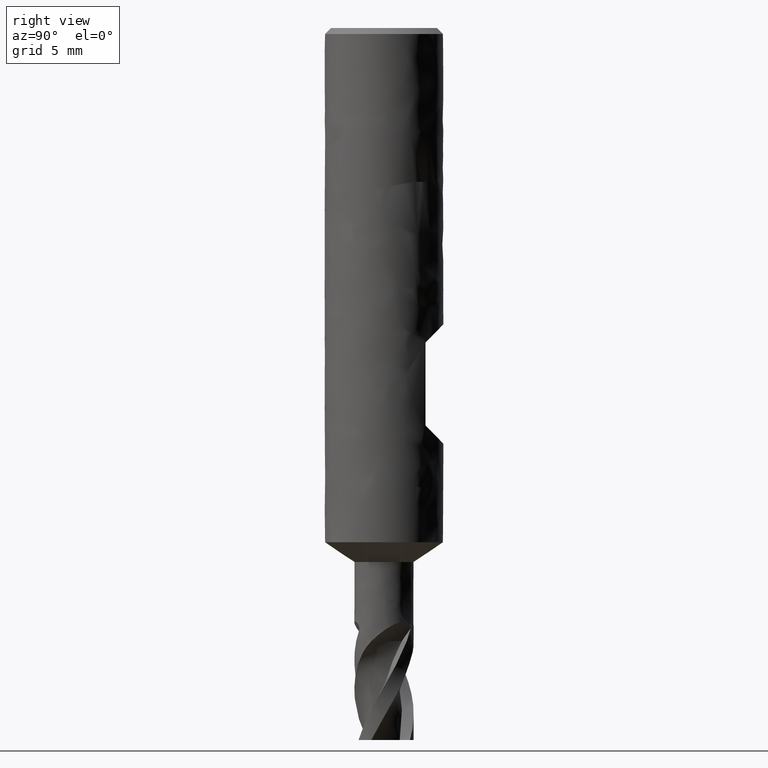
[diagram: clean part render]
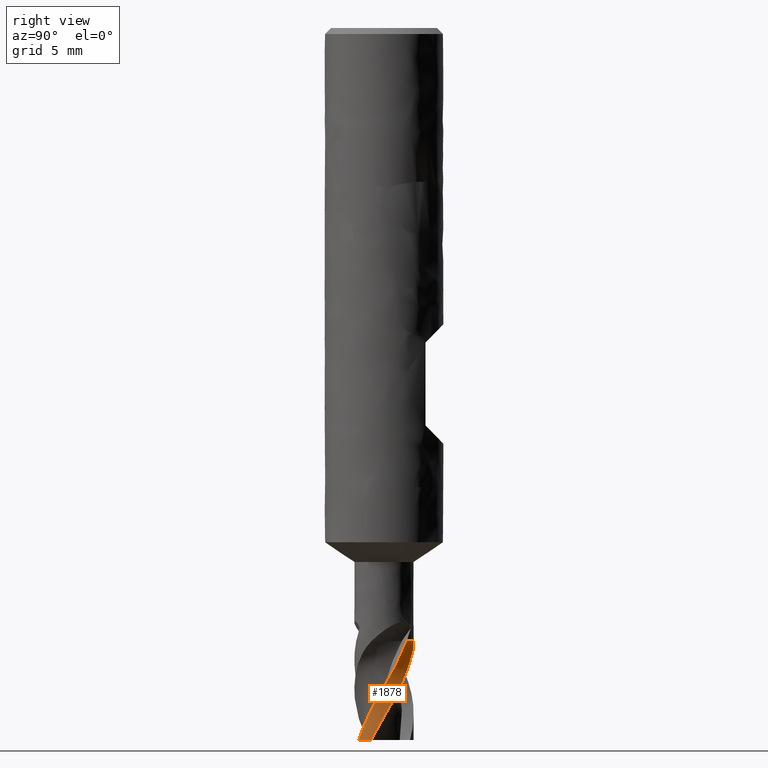
[diagram: same view with one face highlighted and labeled with its STEP entity id]
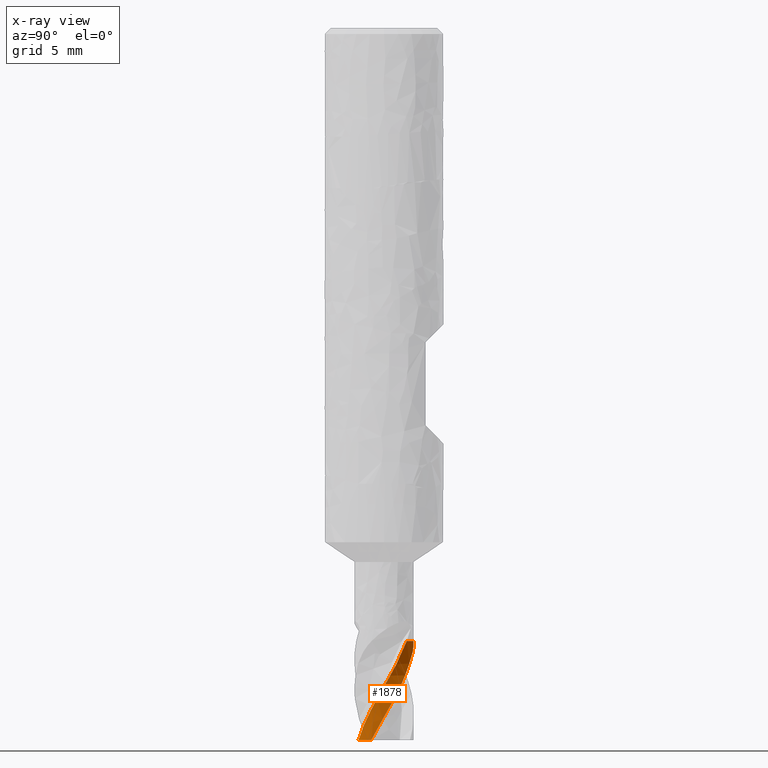
[diagram: x-ray of the same camera — body ghosted, the highlighted face saturated]
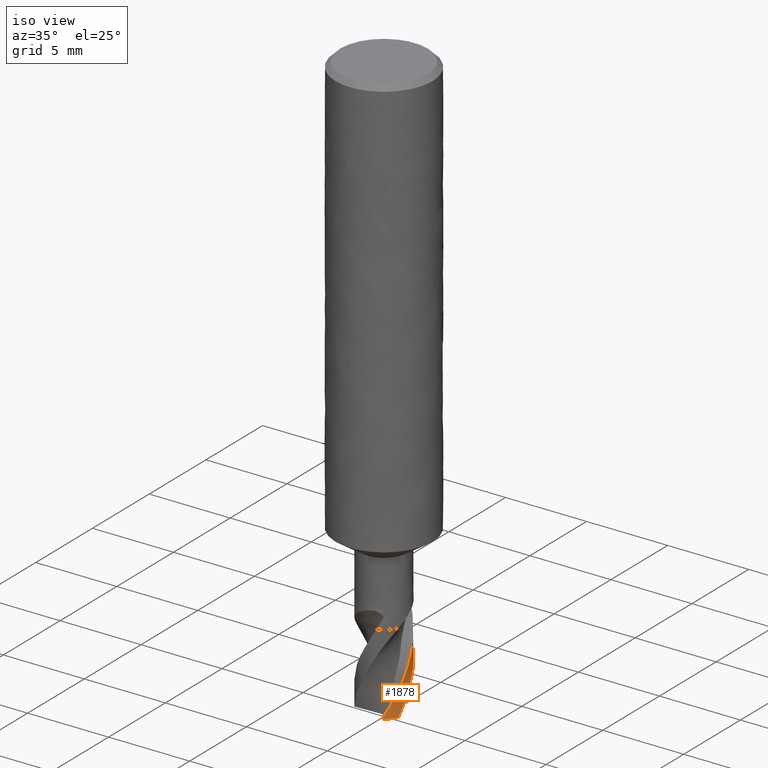
[diagram: same view with one face highlighted and labeled with its STEP entity id]
A machine part, right view. The second image highlights one B-rep face of the part: STEP entity #1878.
The next image is the same camera in x-ray: the body ghosted, the highlighted face saturated — about 0% of this face is hidden behind the body in this view.
A second angle (iso view) of the same face is appended — the face is thin or edge-on in the first view.
In plain terms, the highlighted face is a freeform B-spline surface patch.
Its self-contained STEP definition (entity closure, byte-faithful):
#1124 = VERTEX_POINT('', #1125);
#1125 = CARTESIAN_POINT('', (0.958839185865557, 1.15352824657599, -31.));
#1131 = EDGE_CURVE('', #1132, #1124, #1134, .T.);
#1132 = VERTEX_POINT('', #1133);
#1133 = CARTESIAN_POINT('', (-0.132525076305562, 1.49413423230653, -31.));
#1134 = CIRCLE('', #1135, 1.5);
#1135 = AXIS2_PLACEMENT_3D('', #1136, #1137, #1138);
#1136 = CARTESIAN_POINT('', (1.16231383156294E-31, 1.8982025386784E-15, -31.));
#1137 = DIRECTION('', (3.74939945665464E-33, 6.12323399573677E-17, -1.));
#1138 = DIRECTION('', (-1., 6.12323399573677E-17, 0.));
#1730 = EDGE_CURVE('', #1731, #1132, #1733, .T.);
#1731 = VERTEX_POINT('', #1732);
#1732 = CARTESIAN_POINT('', (1.35516285977925, -0.643065800268464, -36.));
#1733 = B_SPLINE_CURVE_WITH_KNOTS('', 3, (#1734, #1735, #1736, #1737, #1738, #1739, #1740, #1741, #1742, #1743, #1744, #1745, #1746, #1747, #1748, #1749, #1750, #1751, #1752, #1753, #1754, #1755, #1756, #1757, #1758, #1759, #1760, #1761, #1762, #1763, #1764, #1765, #1766, #1767, #1768, #1769, #1770, #1771, #1772, #1773, #1774, #1775, #1776, #1777, #1778, #1779, #1780, #1781, #1782, #1783, #1784, #1785, #1786, #1787, #1788, #1789, #1790, #1791, #1792, #1793, #1794, #1795, #1796, #1797, #1798, #1799, #1800, #1801, #1802, #1803, #1804, #1805, #1806, #1807, #1808, #1809, #1810, #1811, #1812, #1813, #1814, #1815, #1816, #1817, #1818, #1819, #1820, #1821, #1822, #1823, #1824, #1825, #1826, #1827), .UNSPECIFIED., .F., .U., (4, 3, 3, 3, 3, 3, 3, 3, 3, 3, 3, 3, 3, 3, 3, 3, 3, 3, 3, 3, 3, 3, 3, 3, 3, 3, 3, 3, 3, 3, 3, 4), (0., 0.442532734427091, 0.884771274311208, 1.17972834788145, 1.3109583568353, 1.36932813242417, 1.66559458316171, 1.96176102698724, 2.15903733743401, 2.45504305907387, 2.75094945797995, 2.94811205381504, 3.0795101949103, 3.21090249123528, 3.40800019671643, 3.60505973044536, 3.73640650669859, 3.8677720199228, 3.99917569235387, 4.05756086844672, 4.25465709933884, 4.3860332126647, 4.58314525158849, 4.78024687678338, 4.97735714707174, 5.17448675600856, 5.37162761952139, 5.56877535665107, 5.70016971297617, 5.73909404548315, 5.76506043707108, 5.93192917428079), .UNSPECIFIED.);
#1734 = CARTESIAN_POINT('', (1.3551628597795, -0.643065800267935, -36.));
#1735 = CARTESIAN_POINT('', (1.38637585611365, -0.577289182452383, -35.8717087126381));
#1736 = CARTESIAN_POINT('', (1.41283940434925, -0.509125696539645, -35.7433755593956));
#1737 = CARTESIAN_POINT('', (1.43421183009642, -0.439359108715716, -35.6151752799674));
#1738 = CARTESIAN_POINT('', (1.45557004751383, -0.369638901527213, -35.4870602277318));
#1739 = CARTESIAN_POINT('', (1.47186845032333, -0.298234473315245, -35.3589072632373));
#1740 = CARTESIAN_POINT('', (1.48287851110853, -0.225989648640225, -35.230883784062));
#1741 = CARTESIAN_POINT('', (1.49022182250307, -0.177804969683202, -35.1454967647042));
#1742 = CARTESIAN_POINT('', (1.49522133376664, -0.129212491248956, -35.0601051025218));
#1743 = CARTESIAN_POINT('', (1.49783998053872, -0.0804698247777057, -34.9747591844144));
#1744 = CARTESIAN_POINT('', (1.4990050485101, -0.0587836164083602, -34.9367877417843));
#1745 = CARTESIAN_POINT('', (1.4996994803016, -0.0370638593079372, -34.8988180823167));
#1746 = CARTESIAN_POINT('', (1.49992162658856, -0.0153334305334637, -34.8608546974764));
#1747 = CARTESIAN_POINT('', (1.50002043500152, -0.00566795644619165, -34.8439689693462));
#1748 = CARTESIAN_POINT('', (1.50002582824932, 0.00399998854800063, -34.8270838501038));
#1749 = CARTESIAN_POINT('', (1.49993772394604, 0.0136683679922434, -34.810199726097));
#1750 = CARTESIAN_POINT('', (1.49949053447231, 0.062741992713801, -34.7245012726966));
#1751 = CARTESIAN_POINT('', (1.49663172475541, 0.111843190593706, -34.6387971995814));
#1752 = CARTESIAN_POINT('', (1.49136621587683, 0.160707218697564, -34.5531395863139));
#1753 = CARTESIAN_POINT('', (1.48610248440936, 0.209554752390573, -34.4675108874017));
#1754 = CARTESIAN_POINT('', (1.47843000298162, 0.258197370965027, -34.3818791808467));
#1755 = CARTESIAN_POINT('', (1.46838014755985, 0.30636537378148, -34.2962935137936));
#1756 = CARTESIAN_POINT('', (1.46168594421757, 0.33845005479557, -34.2392849465661));
#1757 = CARTESIAN_POINT('', (1.45393559091752, 0.370333864726718, -34.1822772004076));
#1758 = CARTESIAN_POINT('', (1.4451464759914, 0.401934898870023, -34.1252829730562));
#1759 = CARTESIAN_POINT('', (1.43195873793814, 0.449351068074377, -34.03976526767));
#1760 = CARTESIAN_POINT('', (1.41642504475155, 0.496157423481714, -33.9542366528472));
#1761 = CARTESIAN_POINT('', (1.39860082451106, 0.54213995764658, -33.8687767722242));
#1762 = CARTESIAN_POINT('', (1.38078258506807, 0.588107062680634, -33.7833455670907));
#1763 = CARTESIAN_POINT('', (1.36065727657725, 0.63327908595302, -33.6979332388549));
#1764 = CARTESIAN_POINT('', (1.33839708524803, 0.677268958538344, -33.6125029736995));
#1765 = CARTESIAN_POINT('', (1.32356510756021, 0.70657943476137, -33.5555807411854));
#1766 = CARTESIAN_POINT('', (1.30777294583568, 0.735390124326599, -33.4986411507387));
#1767 = CARTESIAN_POINT('', (1.29113250186453, 0.763529215308132, -33.4416278249621));
#1768 = CARTESIAN_POINT('', (1.28004255148348, 0.782282388197864, -33.4036315458353));
#1769 = CARTESIAN_POINT('', (1.26857569046993, 0.800739249777827, -33.3655959939269));
#1770 = CARTESIAN_POINT('', (1.2567706473788, 0.818857460054602, -33.327507188034));
#1771 = CARTESIAN_POINT('', (1.24496612939224, 0.836974864408432, -33.2894200763836));
#1772 = CARTESIAN_POINT('', (1.23282675687514, 0.854750033453178, -33.2512710626281));
#1773 = CARTESIAN_POINT('', (1.22036355015556, 0.872188514858878, -33.2130770460311));
#1774 = CARTESIAN_POINT('', (1.2016678616253, 0.898347466093264, -33.1557833290863));
#1775 = CARTESIAN_POINT('', (1.18223574472655, 0.923760790069654, -33.0983803870201));
#1776 = CARTESIAN_POINT('', (1.16208781319666, 0.948447106811885, -33.040925742983));
#1777 = CARTESIAN_POINT('', (1.14194378370027, 0.973128642575244, -32.9834822261401));
#1778 = CARTESIAN_POINT('', (1.12106320134835, 0.99709911465731, -32.9259820357362));
#1779 = CARTESIAN_POINT('', (1.09967124915646, 1.02015839151511, -32.8683159981449));
#1780 = CARTESIAN_POINT('', (1.08541279687556, 1.03552817150337, -32.8298796535864));
#1781 = CARTESIAN_POINT('', (1.0709264417248, 1.05049604509131, -32.7913641412149));
#1782 = CARTESIAN_POINT('', (1.05628252738356, 1.06501982251234, -32.7527441743126));
#1783 = CARTESIAN_POINT('', (1.04163652404854, 1.07954567178929, -32.7141186981681));
#1784 = CARTESIAN_POINT('', (1.02683719405151, 1.09363060365672, -32.675383566446));
#1785 = CARTESIAN_POINT('', (1.01166061437463, 1.10749392834596, -32.6367194645404));
#1786 = CARTESIAN_POINT('', (0.996479626187255, 1.12136128006985, -32.5980441314416));
#1787 = CARTESIAN_POINT('', (0.980916518847296, 1.13500955706287, -32.5594356653473));
#1788 = CARTESIAN_POINT('', (0.964783670338923, 1.1485610429783, -32.5210346801389));
#1789 = CARTESIAN_POINT('', (0.957615535814108, 1.15458222851181, -32.5039723846791));
#1790 = CARTESIAN_POINT('', (0.950335179805052, 1.160583344061, -32.4869496238753));
#1791 = CARTESIAN_POINT('', (0.942930456034727, 1.16656853852748, -32.4699759304871));
#1792 = CARTESIAN_POINT('', (0.917933646166289, 1.18677331222935, -32.4126762661712));
#1793 = CARTESIAN_POINT('', (0.891521520043628, 1.2067937948344, -32.3559061017372));
#1794 = CARTESIAN_POINT('', (0.863652017111142, 1.22641966444601, -32.2997416916278));
#1795 = CARTESIAN_POINT('', (0.845075370774369, 1.23950144920943, -32.2623048422572));
#1796 = CARTESIAN_POINT('', (0.825844781687818, 1.25241234469205, -32.2251251359458));
#1797 = CARTESIAN_POINT('', (0.805952850418117, 1.26508497853026, -32.1882271956987));
#1798 = CARTESIAN_POINT('', (0.7761077055783, 1.28409854675928, -32.1328668409884));
#1799 = CARTESIAN_POINT('', (0.744763471914557, 1.30257943774316, -32.0781042816717));
#1800 = CARTESIAN_POINT('', (0.711997857379006, 1.32024961696177, -32.0239637553402));
#1801 = CARTESIAN_POINT('', (0.679233973900719, 1.33791886263794, -31.969826089335));
#1802 = CARTESIAN_POINT('', (0.645023412704551, 1.3547914989676, -31.9162732489359));
#1803 = CARTESIAN_POINT('', (0.609455535338476, 1.37060714664899, -31.8633454436543));
#1804 = CARTESIAN_POINT('', (0.573886097926288, 1.38642348802204, -31.8104153169012));
#1805 = CARTESIAN_POINT('', (0.536933687753657, 1.40119410625131, -31.7580673726053));
#1806 = CARTESIAN_POINT('', (0.498709001885065, 1.41466933643124, -31.7063544011939));
#1807 = CARTESIAN_POINT('', (0.460480565761545, 1.42814588867693, -31.654636356181));
#1808 = CARTESIAN_POINT('', (0.420941943789269, 1.44033953368665, -31.60351308901));
#1809 = CARTESIAN_POINT('', (0.380243713034462, 1.45100472731751, -31.5530383960729));
#1810 = CARTESIAN_POINT('', (0.339543158725451, 1.46167052984845, -31.5025608214213));
#1811 = CARTESIAN_POINT('', (0.297646588752822, 1.47081713868457, -31.4526817971732));
#1812 = CARTESIAN_POINT('', (0.254729772303813, 1.47821268534066, -31.4034706931118));
#1813 = CARTESIAN_POINT('', (0.211811459494549, 1.48560848985377, -31.3542578732303));
#1814 = CARTESIAN_POINT('', (0.167824596162979, 1.4912608053906, -31.3056639058031));
#1815 = CARTESIAN_POINT('', (0.122988464274144, 1.49494944317709, -31.2577609166687));
#1816 = CARTESIAN_POINT('', (0.0931062309022957, 1.49740783399978, -31.2258346946638));
#1817 = CARTESIAN_POINT('', (0.0628283381620951, 1.49899618826928, -31.1941950911209));
#1818 = CARTESIAN_POINT('', (0.0322253960307221, 1.49965380133238, -31.1628693399536));
#1819 = CARTESIAN_POINT('', (0.0231595645252498, 1.49984861296848, -31.1535893831231));
#1820 = CARTESIAN_POINT('', (0.0140642922973604, 1.49996180682896, -31.1443360207822));
#1821 = CARTESIAN_POINT('', (0.0049414988547453, 1.49999186050761, -31.1351100472393));
#1822 = CARTESIAN_POINT('', (-0.00114430947258545, 1.50001190929299, -31.1289554075482));
#1823 = CARTESIAN_POINT('', (-0.00724253315681358, 1.49999496048814, -31.1228127863644));
#1824 = CARTESIAN_POINT('', (-0.0133525918974258, 1.4999405682525, -31.1166824292502));
#1825 = CARTESIAN_POINT('', (-0.0526178776754061, 1.49959102551206, -31.0772866993183));
#1826 = CARTESIAN_POINT('', (-0.0924078394974578, 1.49769250689405, -31.0383647543594));
#1827 = CARTESIAN_POINT('', (-0.132525076305562, 1.49413423230653, -31.));
#1878 = ADVANCED_FACE('', (#1879), #1986, .T.);
#1879 = FACE_OUTER_BOUND('', #1880, .T.);
#1880 = EDGE_LOOP('', (#1881, #1882, #1978, #1985));
#1881 = ORIENTED_EDGE('', *, *, #1131, .T.);
#1882 = ORIENTED_EDGE('', *, *, #1883, .T.);
#1883 = EDGE_CURVE('', #1124, #1884, #1886, .T.);
#1884 = VERTEX_POINT('', #1885);
#1885 = CARTESIAN_POINT('', (0.774615194868436, -1.28451208631096, -36.));
#1886 = B_SPLINE_CURVE_WITH_KNOTS('', 3, (#1887, #1888, #1889, #1890, #1891, #1892, #1893, #1894, #1895, #1896, #1897, #1898, #1899, #1900, #1901, #1902, #1903, #1904, #1905, #1906, #1907, #1908, #1909, #1910, #1911, #1912, #1913, #1914, #1915, #1916, #1917, #1918, #1919, #1920, #1921, #1922, #1923, #1924, #1925, #1926, #1927, #1928, #1929, #1930, #1931, #1932, #1933, #1934, #1935, #1936, #1937, #1938, #1939, #1940, #1941, #1942, #1943, #1944, #1945, #1946, #1947, #1948, #1949, #1950, #1951, #1952, #1953, #1954, #1955, #1956, #1957, #1958, #1959, #1960, #1961, #1962, #1963, #1964, #1965, #1966, #1967, #1968, #1969, #1970, #1971, #1972, #1973, #1974, #1975, #1976, #1977), .UNSPECIFIED., .F., .U., (4, 3, 3, 3, 3, 3, 3, 3, 3, 3, 3, 3, 3, 3, 3, 3, 3, 3, 3, 3, 3, 3, 3, 3, 3, 3, 3, 3, 3, 3, 4), (0.768501291972744, 0.788452800041908, 0.985530798395523, 1.18259980124485, 1.37965845038083, 1.57670897468573, 1.87233496448266, 2.0693563133312, 2.20068663652815, 2.39768533745453, 2.48524523155411, 2.61653804622702, 2.74778508276514, 2.80615106599475, 3.00295908148236, 3.13420170612831, 3.33092287973347, 3.41843577934289, 3.50607288995942, 3.70342124009038, 3.90073302831841, 4.09802915438417, 4.39407238106804, 4.69002089184925, 4.98587608178324, 5.28164168970053, 5.57731849231491, 5.87290802198258, 6.16841088738354, 6.46382742837209, 6.52739813588739), .UNSPECIFIED.);
#1887 = CARTESIAN_POINT('', (0.958839185865557, 1.15352824657599, -31.));
#1888 = CARTESIAN_POINT('', (0.961377354656553, 1.15141846235149, -31.0057737072787));
#1889 = CARTESIAN_POINT('', (0.963908665198577, 1.14930021266083, -31.011547619918));
#1890 = CARTESIAN_POINT('', (0.966432872239431, 1.14717370238994, -31.0173213118832));
#1891 = CARTESIAN_POINT('', (0.99136661004597, 1.12616835351049, -31.0743529734329));
#1892 = CARTESIAN_POINT('', (1.01561823126477, 1.10434705753086, -31.1313922244339));
#1893 = CARTESIAN_POINT('', (1.0391291513453, 1.08176273129758, -31.1884247697676));
#1894 = CARTESIAN_POINT('', (1.0626389982843, 1.05917943591202, -31.2454547118856));
#1895 = CARTESIAN_POINT('', (1.08541618937986, 1.03582551343386, -31.3024914168544));
#1896 = CARTESIAN_POINT('', (1.10740544939931, 1.0117574663133, -31.359520654822));
#1897 = CARTESIAN_POINT('', (1.12939355413563, 0.987690683692274, -31.4165468965579));
#1898 = CARTESIAN_POINT('', (1.15059837182147, 0.962905001532047, -31.4735816537328));
#1899 = CARTESIAN_POINT('', (1.17097143596071, 0.937457143641302, -31.5306081722001));
#1900 = CARTESIAN_POINT('', (1.19134366010787, 0.912010334979037, -31.5876323394342));
#1901 = CARTESIAN_POINT('', (1.2108892203654, 0.885894911276939, -31.6446633616997));
#1902 = CARTESIAN_POINT('', (1.22955967055824, 0.859175777438308, -31.7016881406387));
#1903 = CARTESIAN_POINT('', (1.25757010259176, 0.819090269341206, -31.7872398374752));
#1904 = CARTESIAN_POINT('', (1.28362666786203, 0.777621107564215, -31.8728163188423));
#1905 = CARTESIAN_POINT('', (1.30759123269539, 0.734986508840923, -31.9583646427169));
#1906 = CARTESIAN_POINT('', (1.32356253106223, 0.70657247747024, -32.0153787305957));
#1907 = CARTESIAN_POINT('', (1.33860979855644, 0.677632591771629, -32.0723994832182));
#1908 = CARTESIAN_POINT('', (1.35269404881017, 0.648242863681152, -32.1294163539186));
#1909 = CARTESIAN_POINT('', (1.3620823163691, 0.628652283719384, -32.1674226111111));
#1910 = CARTESIAN_POINT('', (1.37104361995239, 0.608860366561278, -32.2054334806535));
#1911 = CARTESIAN_POINT('', (1.37956887658087, 0.588888541890057, -32.2434446920983));
#1912 = CARTESIAN_POINT('', (1.39235697029748, 0.558930315795846, -32.300462440117));
#1913 = CARTESIAN_POINT('', (1.4041685839995, 0.528557986190313, -32.357491526745));
#1914 = CARTESIAN_POINT('', (1.41498849938961, 0.497802718549372, -32.41449237923));
#1915 = CARTESIAN_POINT('', (1.41979762067452, 0.484132943241304, -32.4398275138462));
#1916 = CARTESIAN_POINT('', (1.42441155804697, 0.470385188071671, -32.4651585005018));
#1917 = CARTESIAN_POINT('', (1.4288277632372, 0.456564587985736, -32.4904833419723));
#1918 = CARTESIAN_POINT('', (1.43544969917672, 0.435841110594504, -32.5284570027677));
#1919 = CARTESIAN_POINT('', (1.44162250564426, 0.414965686182219, -32.5664290066532));
#1920 = CARTESIAN_POINT('', (1.44732895510423, 0.39400367475051, -32.6044203474596));
#1921 = CARTESIAN_POINT('', (1.45303341488477, 0.373048972186291, -32.6423984417474));
#1922 = CARTESIAN_POINT('', (1.45827354539361, 0.352005511362536, -32.6804002063463));
#1923 = CARTESIAN_POINT('', (1.46305361924183, 0.330868715993793, -32.7184049802861));
#1924 = CARTESIAN_POINT('', (1.46517933360019, 0.321469114474703, -32.7353058266361));
#1925 = CARTESIAN_POINT('', (1.46721446773248, 0.312049129612714, -32.7522069854414));
#1926 = CARTESIAN_POINT('', (1.46915946761436, 0.302606111503218, -32.7691053925272));
#1927 = CARTESIAN_POINT('', (1.47571793790295, 0.270764590954639, -32.8260862190196));
#1928 = CARTESIAN_POINT('', (1.48125044907207, 0.238659989914845, -32.8830480053237));
#1929 = CARTESIAN_POINT('', (1.48573328546179, 0.206389448545475, -32.9399885610706));
#1930 = CARTESIAN_POINT('', (1.48872269223055, 0.184869641348759, -32.9779597177153));
#1931 = CARTESIAN_POINT('', (1.49124545645931, 0.163275574674463, -33.0159284581308));
#1932 = CARTESIAN_POINT('', (1.49329689291663, 0.141648824935283, -33.0539011153426));
#1933 = CARTESIAN_POINT('', (1.49637181608696, 0.109232225515439, -33.1108187951877));
#1934 = CARTESIAN_POINT('', (1.49838930249237, 0.0767316178159082, -33.1677555879875));
#1935 = CARTESIAN_POINT('', (1.4993481998397, 0.0442151064394499, -33.224691256537));
#1936 = CARTESIAN_POINT('', (1.49977477256573, 0.0297498908066473, -33.2500195186384));
#1937 = CARTESIAN_POINT('', (1.49999197276195, 0.0152799472277529, -33.2753494721613));
#1938 = CARTESIAN_POINT('', (1.4999997815929, 0.000809457374657103, -33.3006783124645));
#1939 = CARTESIAN_POINT('', (1.50000760150728, -0.0136815710976144, -33.3260431031336));
#1940 = CARTESIAN_POINT('', (1.49980542418444, -0.0281741381500779, -33.3514079496452));
#1941 = CARTESIAN_POINT('', (1.49939317124163, -0.0426628413724659, -33.3767707195939));
#1942 = CARTESIAN_POINT('', (1.49846482664506, -0.0752896778388885, -33.4338846610384));
#1943 = CARTESIAN_POINT('', (1.49647003583897, -0.107906117434228, -33.4909971528149));
#1944 = CARTESIAN_POINT('', (1.49341323146297, -0.140416950868904, -33.548102986538));
#1945 = CARTESIAN_POINT('', (1.49035699340833, -0.172921761157526, -33.6051982405023));
#1946 = CARTESIAN_POINT('', (1.4862399010812, -0.205319843550406, -33.6623073994534));
#1947 = CARTESIAN_POINT('', (1.48107109978949, -0.23754662146269, -33.7194080963562));
#1948 = CARTESIAN_POINT('', (1.47590270878552, -0.26977084128643, -33.7765042607353));
#1949 = CARTESIAN_POINT('', (1.46968090858902, -0.301833260583598, -33.8336063181494));
#1950 = CARTESIAN_POINT('', (1.46242086018463, -0.333654353630892, -33.8907009267395));
#1951 = CARTESIAN_POINT('', (1.45152714322032, -0.381401966572814, -33.976371499651));
#1952 = CARTESIAN_POINT('', (1.43828993051685, -0.428626037044689, -34.0620693803292));
#1953 = CARTESIAN_POINT('', (1.42277980605976, -0.475076439605874, -34.1477417260142));
#1954 = CARTESIAN_POINT('', (1.40727464390312, -0.521511980851512, -34.2333866617373));
#1955 = CARTESIAN_POINT('', (1.38948808269912, -0.567203430984648, -34.3190554933022));
#1956 = CARTESIAN_POINT('', (1.36951649386654, -0.611902421164928, -34.4046992932859));
#1957 = CARTESIAN_POINT('', (1.3495512026348, -0.656587316502756, -34.4903160873829));
#1958 = CARTESIAN_POINT('', (1.32739091573348, -0.700306086512327, -34.5759587104065));
#1959 = CARTESIAN_POINT('', (1.30315433672379, -0.742824861375807, -34.6615760578239));
#1960 = CARTESIAN_POINT('', (1.27892509630979, -0.785330761976033, -34.7471674811577));
#1961 = CARTESIAN_POINT('', (1.25260638572353, -0.826662621358166, -34.8327838829649));
#1962 = CARTESIAN_POINT('', (1.22433971386487, -0.866598098920879, -34.9183750759643));
#1963 = CARTESIAN_POINT('', (1.19608152923491, -0.90652158562973, -35.0039405697221));
#1964 = CARTESIAN_POINT('', (1.16586006972325, -0.945072851692928, -35.0895313344868));
#1965 = CARTESIAN_POINT('', (1.1338374522807, -0.982045127173698, -35.1750969019161));
#1966 = CARTESIAN_POINT('', (1.10182428674024, -1.01900648979489, -35.2606372135283));
#1967 = CARTESIAN_POINT('', (1.06799222924946, -1.05441148777775, -35.3462026662994));
#1968 = CARTESIAN_POINT('', (1.03252279376066, -1.08807016334641, -35.4317429650511));
#1969 = CARTESIAN_POINT('', (0.997063757600343, -1.12171897048556, -35.5172581841348));
#1970 = CARTESIAN_POINT('', (0.959947530291007, -1.15364220092855, -35.602798563367));
#1971 = CARTESIAN_POINT('', (0.92137301227753, -1.18366877640944, -35.6883137636951));
#1972 = CARTESIAN_POINT('', (0.882809762928393, -1.21368658031216, -35.7738039827108));
#1973 = CARTESIAN_POINT('', (0.84276682517165, -1.24182617887945, -35.8593195265992));
#1974 = CARTESIAN_POINT('', (0.801458269133703, -1.26793716044495, -35.9448098192563));
#1975 = CARTESIAN_POINT('', (0.792569077875217, -1.27355598451784, -35.9632064817171));
#1976 = CARTESIAN_POINT('', (0.783620655428273, -1.27908141215789, -35.9816033820163));
#1977 = CARTESIAN_POINT('', (0.774615194868438, -1.28451208631096, -36.));
#1978 = ORIENTED_EDGE('', *, *, #1979, .F.);
#1979 = EDGE_CURVE('', #1731, #1884, #1980, .T.);
#1980 = CIRCLE('', #1981, 1.5);
#1981 = AXIS2_PLACEMENT_3D('', #1982, #1983, #1984);
#1982 = CARTESIAN_POINT('', (1.34978380439567E-31, 2.20436423846524E-15, -36.));
#1983 = DIRECTION('', (3.74939945665464E-33, 6.12323399573677E-17, -1.));
#1984 = DIRECTION('', (-1., 6.12323399573677E-17, 0.));
#1985 = ORIENTED_EDGE('', *, *, #1730, .T.);
#1986 = (
   BOUNDED_SURFACE ()
   B_SPLINE_SURFACE (2, 1, ((#1987, #1988), (#1989, #1990), (#1991, #1992), (#1993, #1994), (#1995, #1996), (#1997, #1998), (#1999, #2000), (#2001, #2002), (#2003, #2004)), .UNSPECIFIED., .F., .F., .U.)
   B_SPLINE_SURFACE_WITH_KNOTS ((3, 2, 2, 2, 3), (2, 2), (2.21136306771138, 2.35619449019235, 4.71238898038469, 7.06858347057704, 9.42477796076938), (0.444444444444444, 1.), .UNSPECIFIED.)
   GEOMETRIC_REPRESENTATION_ITEM ()
   RATIONAL_B_SPLINE_SURFACE (((0.966205977522131, 0.966205977522131), (0.981996332776282, 0.981996332776282), (1., 1.), (0.707106781186548, 0.707106781186548), (1., 1.), (0.707106781186548, 0.707106781186548), (1., 1.), (0.707106781186548, 0.707106781186548), (1., 1.)))
   REPRESENTATION_ITEM ('')
   SURFACE ()
);
#1987 = CARTESIAN_POINT('', (-0.132525076305563, 1.49413423230653, -31.));
#1988 = CARTESIAN_POINT('', (-0.132525076305563, 1.49413423230653, -36.));
#1989 = CARTESIAN_POINT('', (-0.0663923521909736, 1.5, -31.));
#1990 = CARTESIAN_POINT('', (-0.0663923521909736, 1.5, -36.));
#1991 = CARTESIAN_POINT('', (1.23259516440783E-31, 1.5, -31.));
#1992 = CARTESIAN_POINT('', (1.4791141972894E-31, 1.5, -36.));
#1993 = CARTESIAN_POINT('', (1.5, 1.5, -31.));
#1994 = CARTESIAN_POINT('', (1.5, 1.5, -36.));
#1995 = CARTESIAN_POINT('', (1.5, 1.99005104861445E-15, -31.));
#1996 = CARTESIAN_POINT('', (1.5, 2.29621274840129E-15, -36.));
#1997 = CARTESIAN_POINT('', (1.5, -1.5, -31.));
#1998 = CARTESIAN_POINT('', (1.5, -1.5, -36.));
#1999 = CARTESIAN_POINT('', (1.83697019872103E-16, -1.5, -31.));
#2000 = CARTESIAN_POINT('', (1.83697019872103E-16, -1.5, -36.));
#2001 = CARTESIAN_POINT('', (-1.5, -1.5, -31.));
#2002 = CARTESIAN_POINT('', (-1.5, -1.5, -36.));
#2003 = CARTESIAN_POINT('', (-1.5, 1.99005104861445E-15, -31.));
#2004 = CARTESIAN_POINT('', (-1.5, 2.29621274840129E-15, -36.));